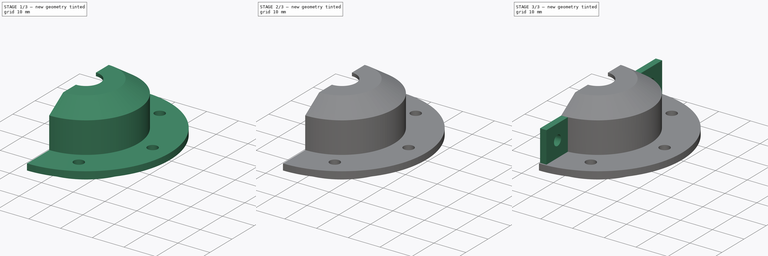
[diagram: build sequence overview — one tinted view per stage of 3, left to right]
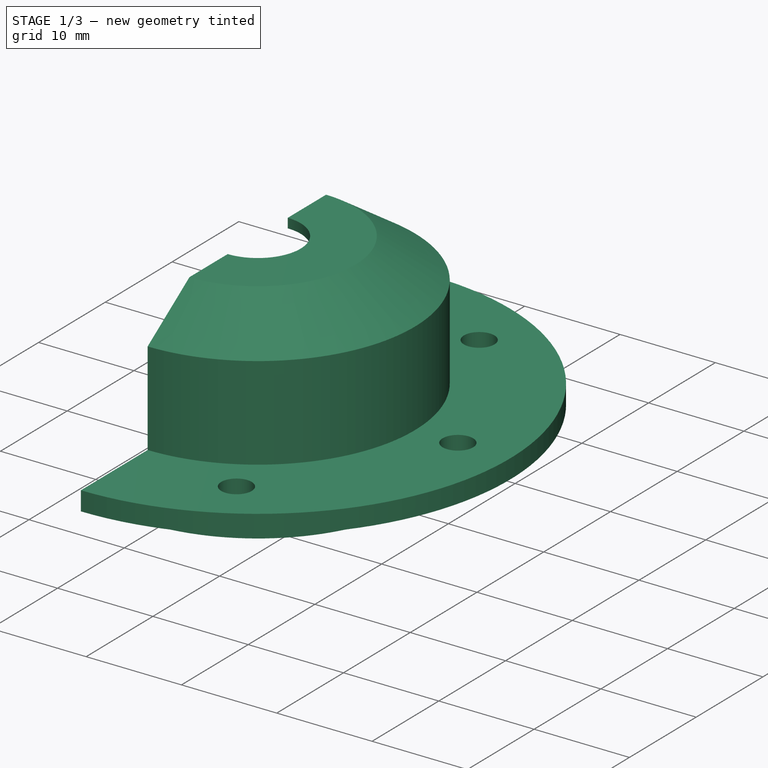
[diagram: stage 1 of 3 — iso view after this stage's code; geometry added in this stage tinted green]
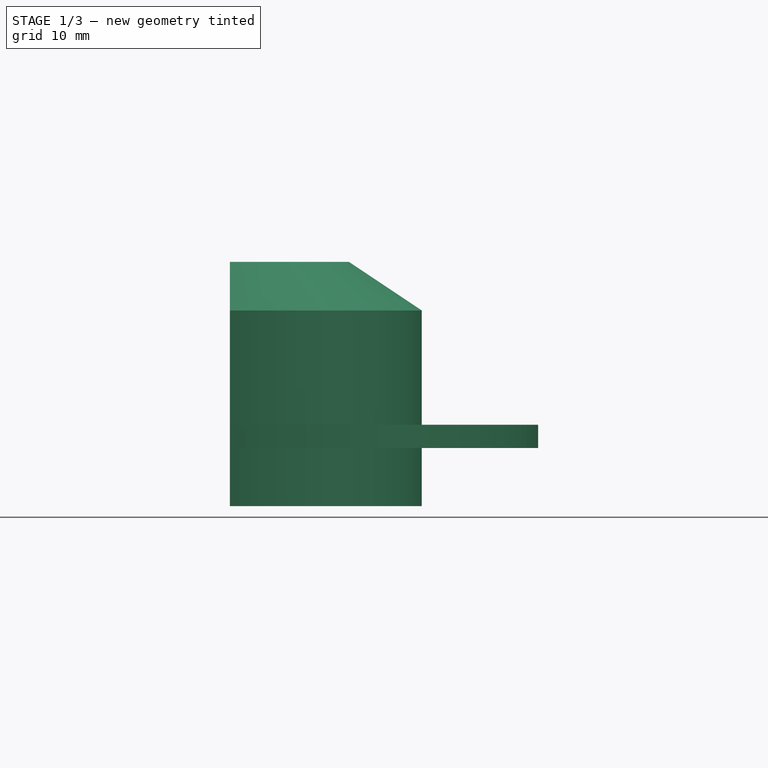
[diagram: stage 1 of 3 — front view after this stage's code; geometry added in this stage tinted green]
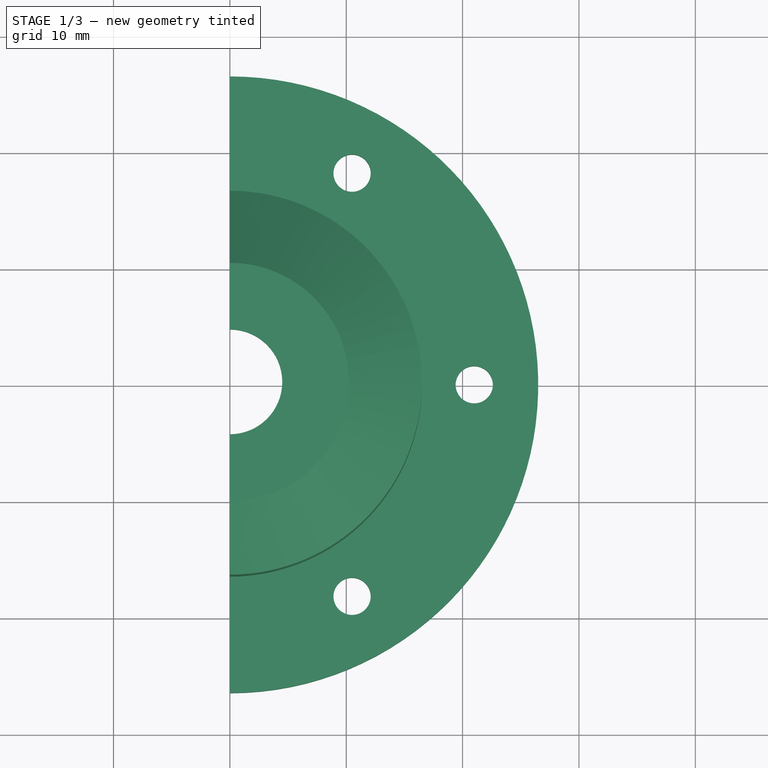
[diagram: stage 1 of 3 — top view after this stage's code; geometry added in this stage tinted green]
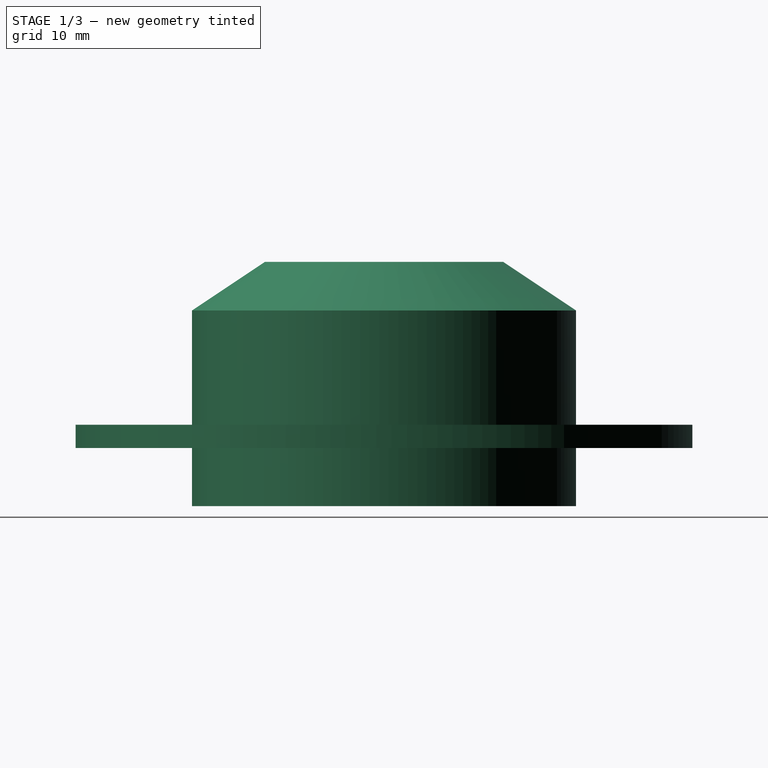
[diagram: stage 1 of 3 — right view after this stage's code; geometry added in this stage tinted green]
FCSTD DOCUMENT  (FreeCAD 0.21R33668 +26 (Git))
Label: grapa arma
License: All rights reserved
LicenseURL: https://en.wikipedia.org/wiki/All_rights_reserved
objects: Sketcher::SketchObject×5, PartDesign::Pocket×2, PartDesign::Pad×2, PartDesign::Revolution×1, PartDesign::Body×1
note: 16 computed .brp shape members not serialized (recipe doc carries the construction recipe); baked Part::Feature solids carry a one-line shape summary decoded from their .brp

FEATURE [Sketcher::SketchObject] Sketch  label="perfil"
  FullyConstrained = true
  MapMode = 5
  Placement = pos=(0,0,0) rot=(1,0,0;1.5708rad)
  Support = -> [XZ_Plane]
  sketch-geometry (12):
    g0: LineSegment StartX=4.5 StartY=20 StartZ=0 EndX=8.5 EndY=20 EndZ=0
    g1: LineSegment StartX=8.5 StartY=20 StartZ=0 EndX=14.5 EndY=16 EndZ=0
    g2: LineSegment StartX=14.5 StartY=16 StartZ=0 EndX=14.5 EndY=0 EndZ=0
    g3: LineSegment StartX=14.5 StartY=0 StartZ=0 EndX=16.5 EndY=0 EndZ=0
    g4: LineSegment StartX=16.5 StartY=0 StartZ=0 EndX=16.5 EndY=5 EndZ=0
    g5: LineSegment StartX=16.5 StartY=5 StartZ=0 EndX=26.5 EndY=5 EndZ=0
    g6: LineSegment StartX=26.5 StartY=5 StartZ=0 EndX=26.5 EndY=7 EndZ=0
    g7: LineSegment StartX=26.5 StartY=7 StartZ=0 EndX=16.5 EndY=7 EndZ=0
    g8: LineSegment StartX=16.5 StartY=7 StartZ=0 EndX=16.5 EndY=16.8214 EndZ=0
    g9: LineSegment StartX=16.5 StartY=16.8214 StartZ=0 EndX=10.2321 EndY=21 EndZ=0
    g10: LineSegment StartX=10.2321 StartY=21 StartZ=0 EndX=4.5 EndY=21 EndZ=0
    g11: LineSegment StartX=4.5 StartY=21 StartZ=0 EndX=4.5 EndY=20 EndZ=0
  constraints (36):
    c: Horizontal(g0)
    c: Coincident(g0,g1)
    c: Coincident(g1,g2)
    c: PointOnObject(g2,g-1)
    c: Vertical(g2)
    c: Coincident(g2,g3)
    c: PointOnObject(g3,g-1)
    c: Coincident(g3,g4)
    c: Vertical(g4)
    c: Coincident(g4,g5)
    c: Horizontal(g5)
    c: Coincident(g5,g6)
    c: Vertical(g6)
    c: Coincident(g6,g7)
    c: Horizontal(g7)
    c: Coincident(g7,g8)
    c: Vertical(g8)
    c: Coincident(g8,g9)
    c: Coincident(g9,g10)
    c: Horizontal(g10)
    c: Coincident(g10,g11)
    c: Coincident(g11,g0)
    c: DistanceX(g-1,g2) = 14.5
    c: DistanceY(g2,g2) = 16
    c: DistanceX(g0,g0) = 4
    c: DistanceX(g-1,g0) = 4.5
    c: Vertical(g11)
    c: DistanceY(g11,g11) = 1
    c: DistanceY(g-1,g0) = 20
    c: Parallel(g1,g9)
    c: DistanceX(g7,g4) = 0
    c: DistanceX(g3,g3) = 2
    c: DistanceY(g4,g4) = 5
    c: DistanceY(g6,g6) = 2
    c: Distance(g0,g9) = 2
    c: DistanceX(g7,g7) = 10
FEATURE [PartDesign::Revolution] Revolution
  Angle = 180
  Axis = (0,-2e-16,1)
  Base = (0,0,0)
  Midplane = true
  Placement = pos=(0,0,0) rot=(1,0,0;1.5708rad)
  Profile = -> Sketch
  ReferenceAxis = -> Sketch [V_Axis]
  Reversed = true
FEATURE [Sketcher::SketchObject] Sketch001
  FullyConstrained = true
  MapMode = 5
  Placement = pos=(0,-1.6e-15,7) rot=(0,0,1;3.14159rad)
  Support = -> [Revolution]
  sketch-geometry (3):
    g0: Circle CenterX=-21 CenterY=0 CenterZ=0 NormalX=0 NormalY=0 NormalZ=1 AngleXU=0 Radius=1.6
    g1: Circle CenterX=-10.5 CenterY=18.1865 CenterZ=0 NormalX=0 NormalY=0 NormalZ=1 AngleXU=0 Radius=1.6
    g2: Circle CenterX=-10.5 CenterY=-18.1865 CenterZ=0 NormalX=0 NormalY=0 NormalZ=1 AngleXU=0 Radius=1.6
  constraints (9):
    c: PointOnObject(g0,g-1)
    c: DistanceX(g0,g-1) = 21
    c: Distance(g-1,g1) = 21
    c: DistanceX(g0,g1) = 10.5
    c: DistanceX(g0,g2) = 10.5
    c: Distance(g-1,g2) = 21
    c: Radius(g1) = 1.6
    c: Radius(g0) = 1.6
    c: Radius(g2) = 1.6
FEATURE [PartDesign::Pocket] Pocket  label="Taladros exteriores"
  BaseFeature = -> Revolution
  Direction = (0,2e-16,-1)
  Length = 5
  Length2 = 5
  Placement = pos=(0,0,0) rot=(1,0,0;1.5708rad)
  Profile = -> Sketch001
  ReferenceAxis = -> Sketch001 [N_Axis]
  Type = 0
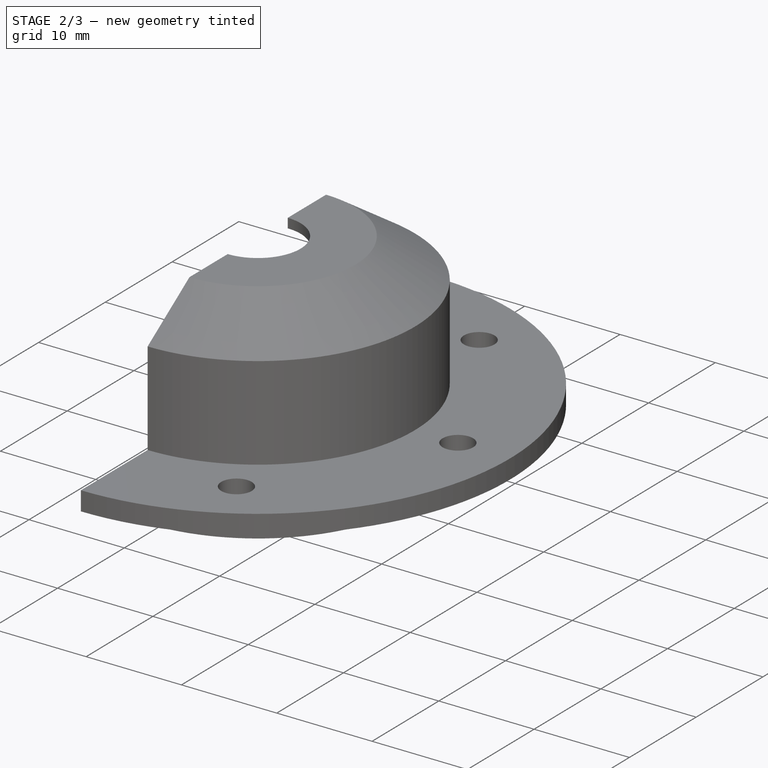
[diagram: stage 2 of 3 — iso view after this stage's code; geometry added in this stage tinted green]
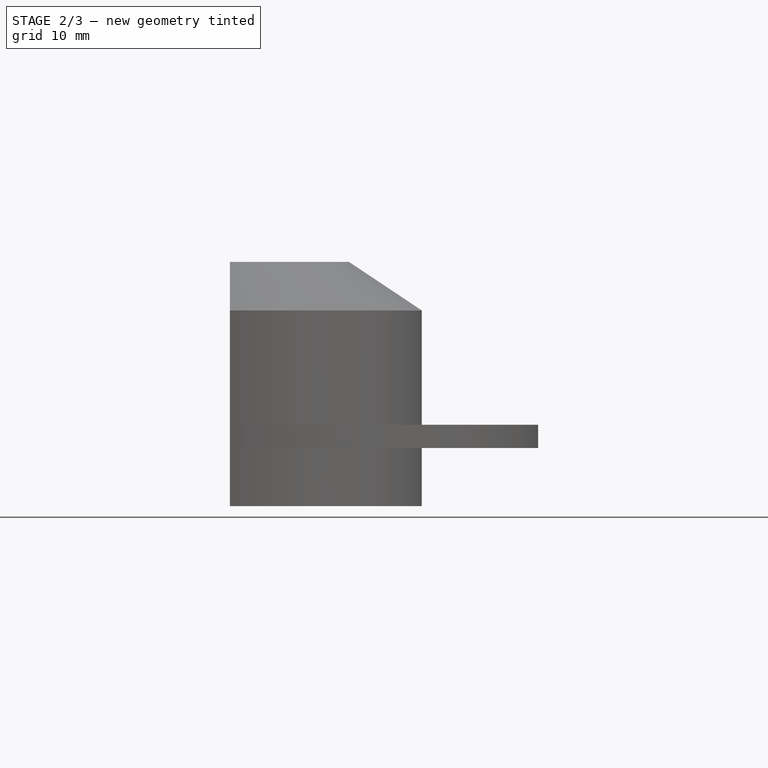
[diagram: stage 2 of 3 — front view after this stage's code; geometry added in this stage tinted green]
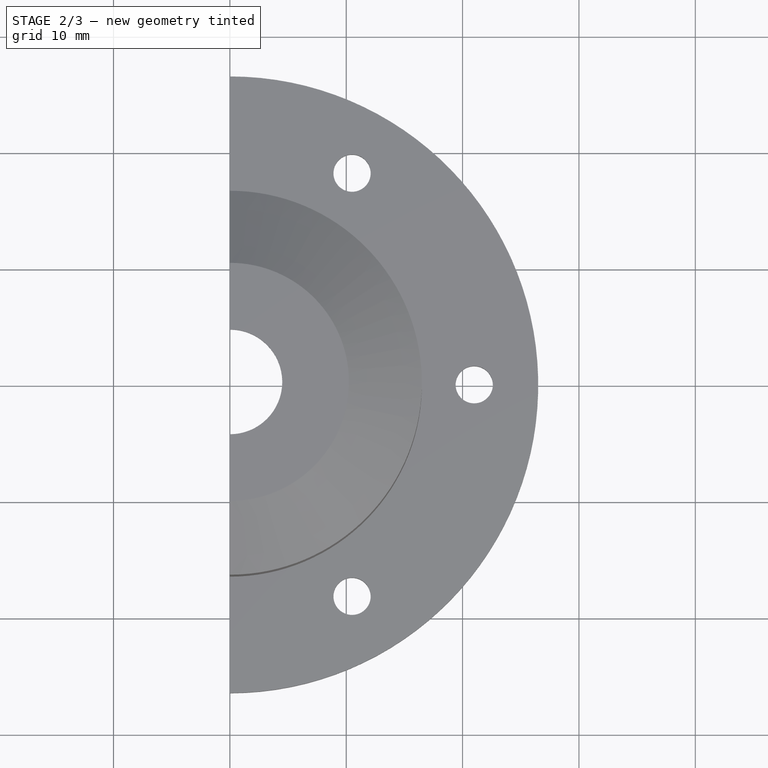
[diagram: stage 2 of 3 — top view after this stage's code; geometry added in this stage tinted green]
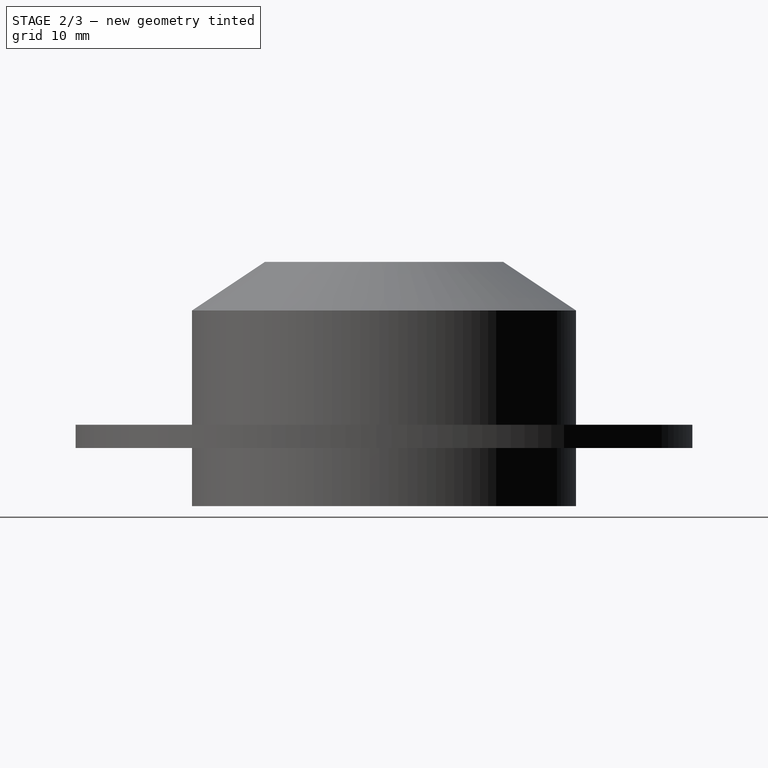
[diagram: stage 2 of 3 — right view after this stage's code; geometry added in this stage tinted green]
FEATURE [Sketcher::SketchObject] Sketch002
  FullyConstrained = true
  MapMode = 5
  Placement = pos=(0,-4.4e-15,20) rot=(1,0,0;3.14159rad)
  Support = -> [Pocket]
  sketch-geometry (2):
    g0: Circle CenterX=5.6285 CenterY=5.4 CenterZ=0 NormalX=0 NormalY=0 NormalZ=1 AngleXU=0 Radius=3.25
    g1: Circle CenterX=5.6285 CenterY=-5.4 CenterZ=0 NormalX=0 NormalY=0 NormalZ=1 AngleXU=0 Radius=3.25
  constraints (6):
    c: Diameter(g0) = 6.5
    c: Diameter(g1) = 6.5
    c: Distance(g-1,g0) = 7.8
    c: Distance(g-1,g1) = 7.8
    c: DistanceX(g0,g1) = 0
    c: DistanceY(g1,g0) = 10.8
FEATURE [PartDesign::Pad] Pad
  BaseFeature = -> Pocket
  Direction = (0,2e-16,-1)
  Length = 3
  Length2 = 10
  Placement = pos=(0,0,0) rot=(1,0,0;1.5708rad)
  Profile = -> Sketch002
  ReferenceAxis = -> Sketch002 [N_Axis]
  Type = 0
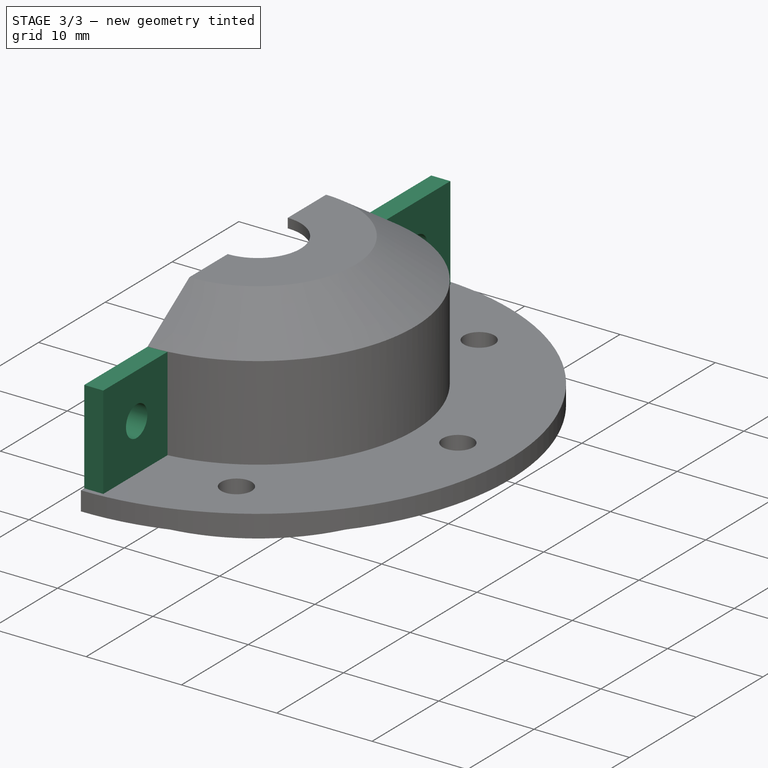
[diagram: stage 3 of 3 — iso view after this stage's code; geometry added in this stage tinted green]
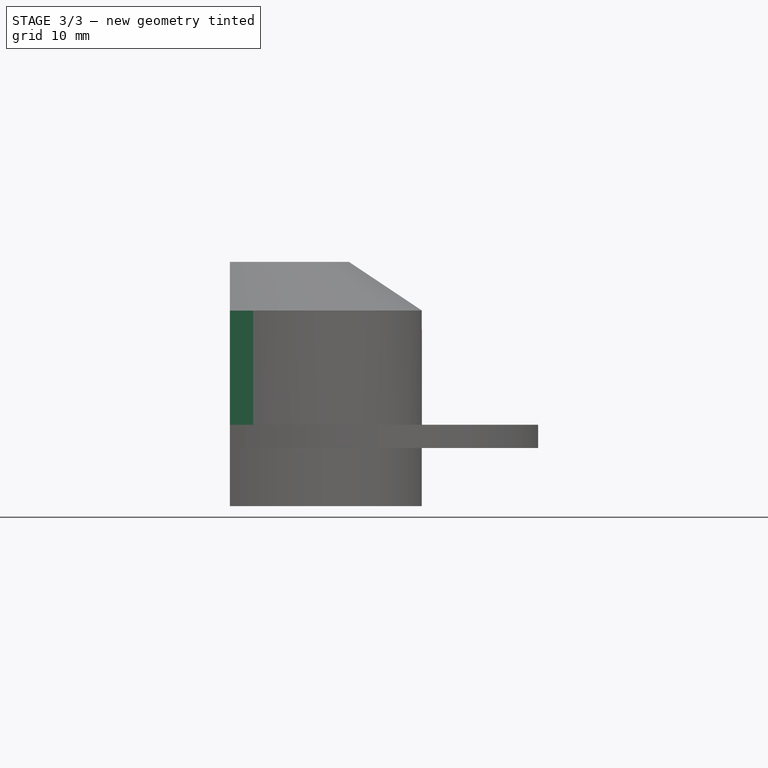
[diagram: stage 3 of 3 — front view after this stage's code; geometry added in this stage tinted green]
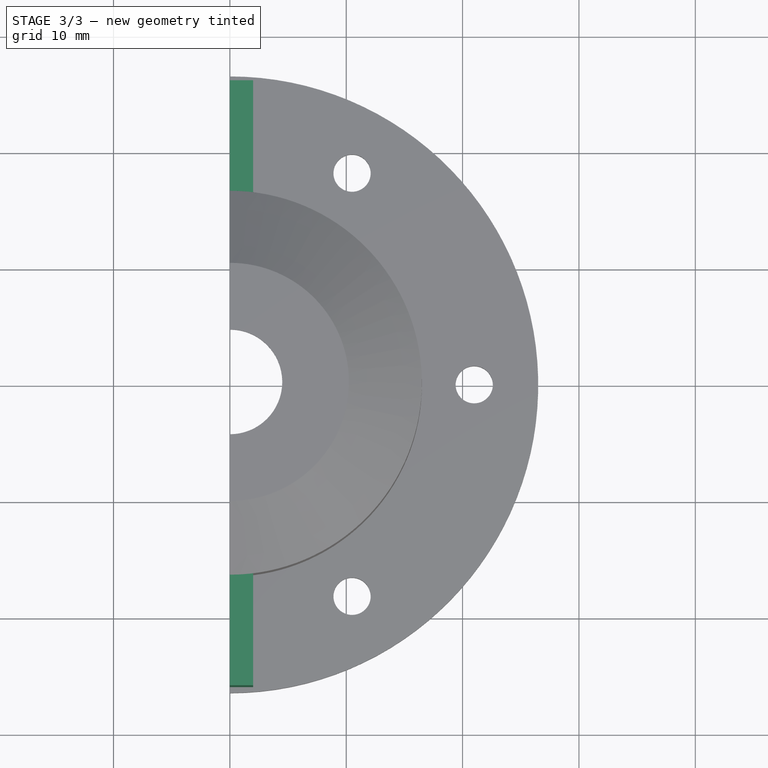
[diagram: stage 3 of 3 — top view after this stage's code; geometry added in this stage tinted green]
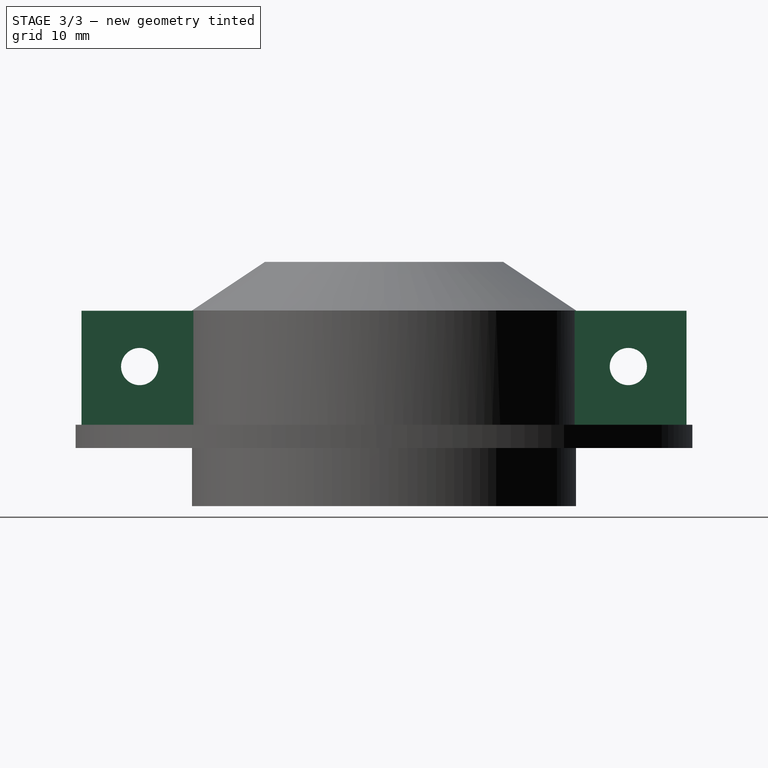
[diagram: stage 3 of 3 — right view after this stage's code; geometry added in this stage tinted green]
FEATURE [Sketcher::SketchObject] Sketch003
  FullyConstrained = true
  MapMode = 5
  Placement = pos=(0,-1.6e-15,7) rot=(0,0,1;3.14159rad)
  Support = -> [Pad]
  sketch-geometry (8):
    g0: LineSegment StartX=-2 StartY=26 StartZ=0 EndX=0 EndY=26 EndZ=0
    g1: LineSegment StartX=0 StartY=26 StartZ=0 EndX=0 EndY=16 EndZ=0
    g2: LineSegment StartX=0 StartY=16 StartZ=0 EndX=-2 EndY=16 EndZ=0
    g3: LineSegment StartX=-2 StartY=16 StartZ=0 EndX=-2 EndY=26 EndZ=0
    g4: LineSegment StartX=0 StartY=-26 StartZ=0 EndX=-2 EndY=-26 EndZ=0
    g5: LineSegment StartX=-2 StartY=-26 StartZ=0 EndX=-2 EndY=-16 EndZ=0
    g6: LineSegment StartX=-2 StartY=-16 StartZ=0 EndX=0 EndY=-16 EndZ=0
    g7: LineSegment StartX=0 StartY=-16 StartZ=0 EndX=0 EndY=-26 EndZ=0
  constraints (24):
    c: Coincident(g0,g1)
    c: Coincident(g1,g2)
    c: Coincident(g2,g3)
    c: Coincident(g3,g0)
    c: Horizontal(g0)
    c: Horizontal(g2)
    c: Vertical(g1)
    c: Vertical(g3)
    c: PointOnObject(g1,g-2)
    c: DistanceX(g0,g0) = 2
    c: DistanceY(g3,g3) = 10
    c: DistanceY(g-1,g1) = 16
    c: Coincident(g4,g5)
    c: Coincident(g5,g6)
    c: Coincident(g6,g7)
    c: Coincident(g7,g4)
    c: Horizontal(g4)
    c: Horizontal(g6)
    c: Vertical(g5)
    c: Vertical(g7)
    c: PointOnObject(g4,g-2)
    c: DistanceX(g4,g4) = 2
    c: DistanceY(g5,g5) = 10
    c: DistanceY(g6,g-1) = 16
FEATURE [PartDesign::Pad] Pad001  label="Orejas"
  BaseFeature = -> Pad
  Direction = (0,-2e-16,1)
  Length = 9.8
  Length2 = 10
  Placement = pos=(0,0,0) rot=(1,0,0;1.5708rad)
  Profile = -> Sketch003
  ReferenceAxis = -> Sketch003 [N_Axis]
  Type = 0
FEATURE [Sketcher::SketchObject] Sketch004
  FullyConstrained = true
  MapMode = 5
  Placement = pos=(0,0,0) rot=(0.707107,0,-0.707107;3.14159rad)
  Support = -> [Pad001]
  sketch-geometry (2):
    g0: Circle CenterX=-12 CenterY=-21 CenterZ=0 NormalX=0 NormalY=0 NormalZ=1 AngleXU=0 Radius=1.6
    g1: Circle CenterX=-12 CenterY=21 CenterZ=0 NormalX=0 NormalY=0 NormalZ=1 AngleXU=0 Radius=1.6
  constraints (6):
    c: DistanceX(g0,g-1) = 12
    c: DistanceY(g0,g-1) = 21
    c: DistanceX(g0,g1) = 0
    c: DistanceY(g-1,g1) = 21
    c: Diameter(g1) = 3.2
    c: Diameter(g0) = 3.2
FEATURE [PartDesign::Pocket] Pocket001  label="Taladros orejas"
  BaseFeature = -> Pad001
  Direction = (1,0,2e-16)
  Length = 5
  Length2 = 5
  Placement = pos=(0,0,0) rot=(1,0,0;1.5708rad)
  Profile = -> Sketch004
  ReferenceAxis = -> Sketch004 [N_Axis]
  Type = 0
FEATURE [PartDesign::Body] Body  label="Cuerpo"
  Group = -> [Sketch,Revolution,Sketch001,Pocket,Sketch002,Pad,Sketch003,Pad001,Sketch004,Pocket001]
  Origin = -> Origin
  Tip = -> Pocket001
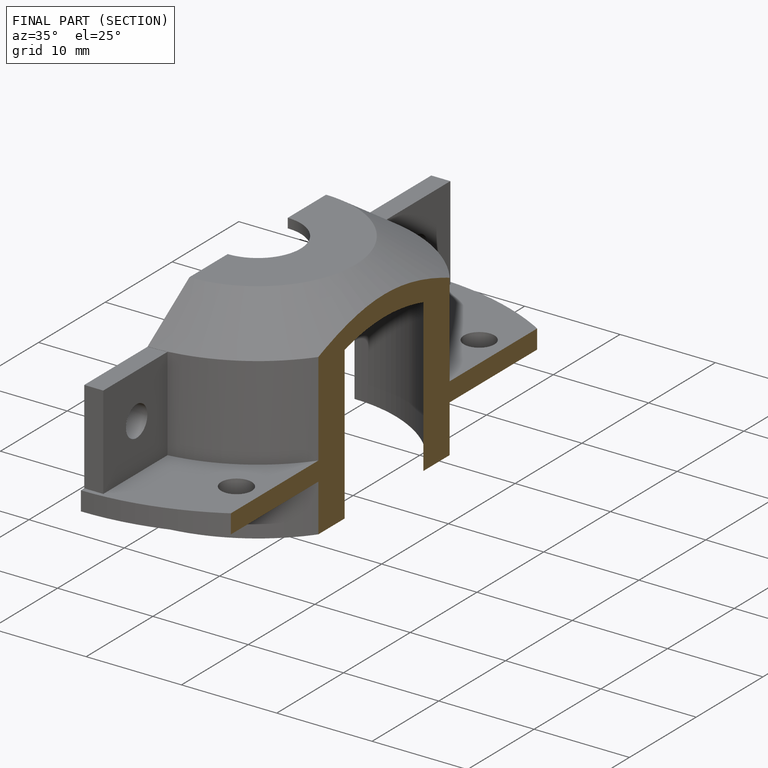
[diagram: finished part — half-section view (interior)]
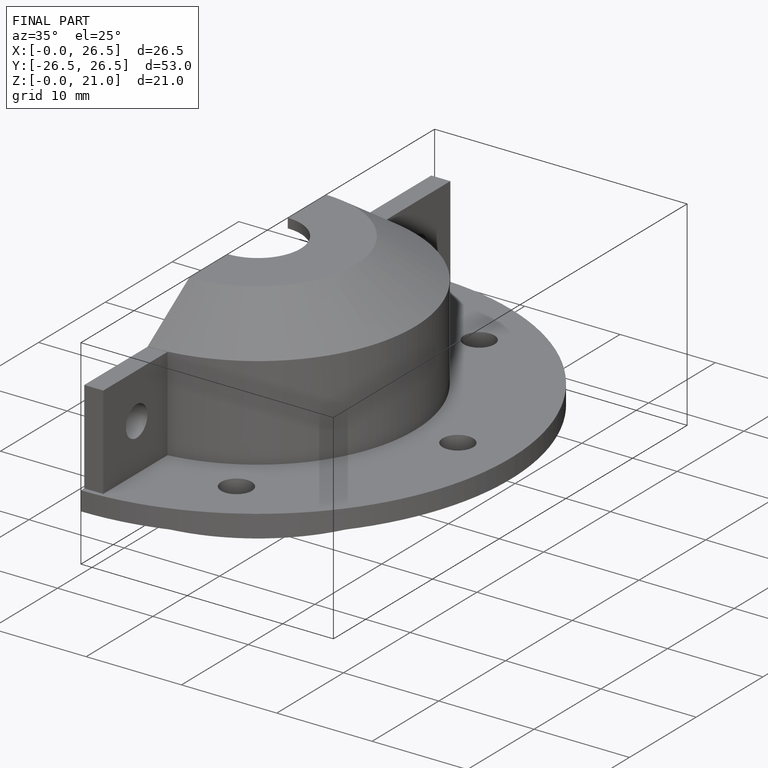
[diagram: finished part — iso view with bounding-box wireframe]
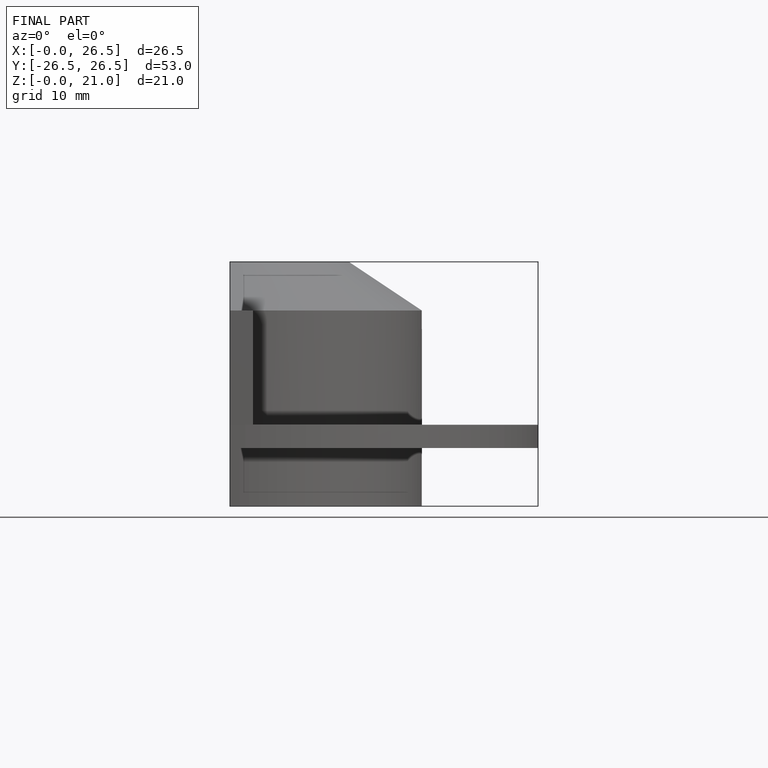
[diagram: finished part — front view with bounding-box wireframe]
